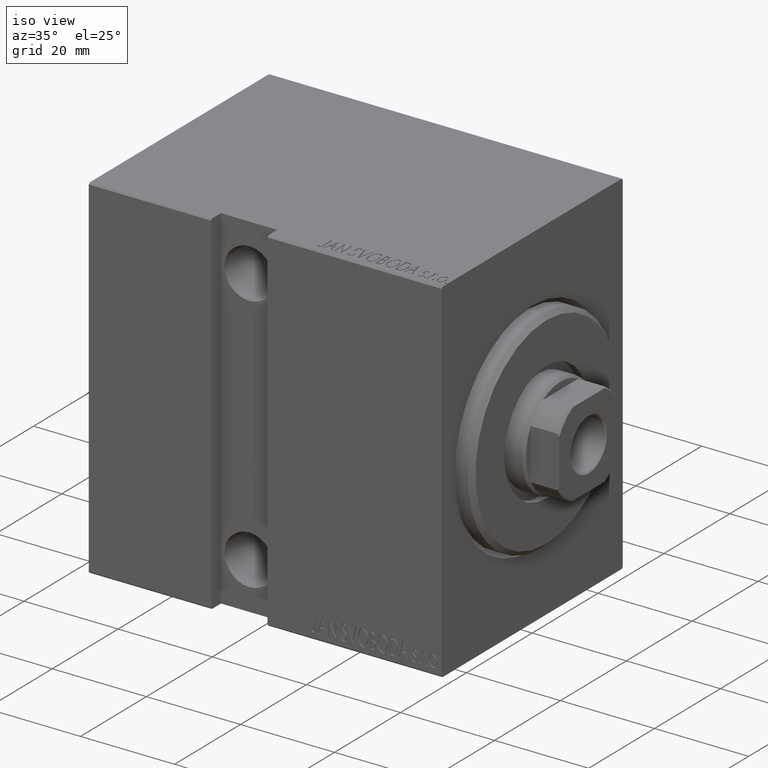
[diagram: clean part render]
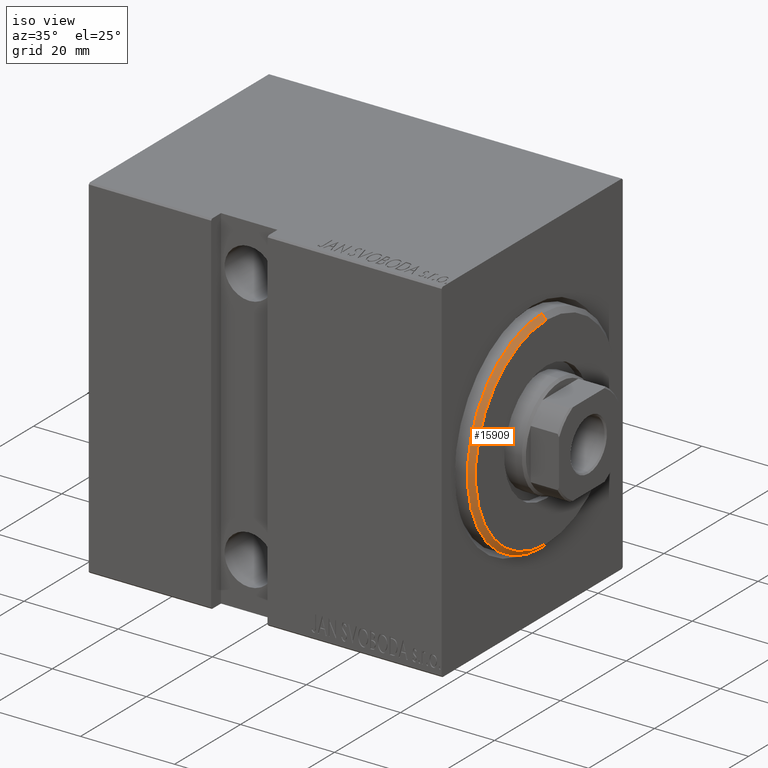
[diagram: same view with one face highlighted and labeled with its STEP entity id]
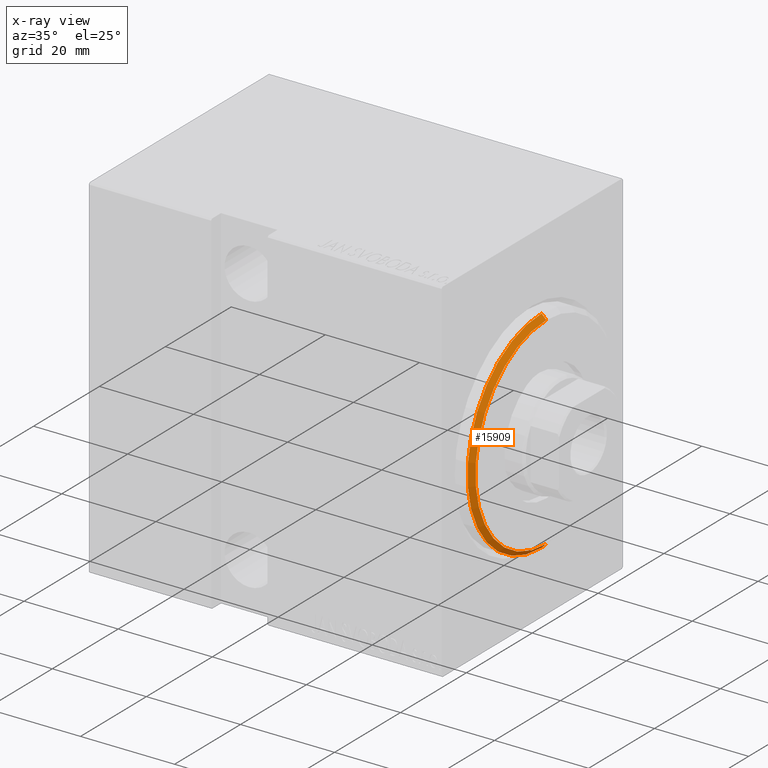
[diagram: x-ray of the same camera — body ghosted, the highlighted face saturated]
A machine part, iso view. The second image highlights one B-rep face of the part: STEP entity #15909.
The next image is the same camera in x-ray: the body ghosted, the highlighted face saturated — about 0% of this face is hidden behind the body in this view.
In plain terms, the highlighted conical surface has half-angle 45 deg.
Its self-contained STEP definition (entity closure, byte-faithful):
#2591 = VECTOR ( 'NONE', #42768, 1000.000000000000000 ) ;
#3724 = AXIS2_PLACEMENT_3D ( 'NONE', #13530, #13318, #13102 ) ;
#8560 = CIRCLE ( 'NONE', #34776, 22.50000000000000355 ) ;
#12087 = EDGE_CURVE ( 'NONE', #32230, #36011, #13322, .T. ) ;
#13001 = CONICAL_SURFACE ( 'NONE', #34394, 21.49999999999998579, 0.7853981633974466137 ) ;
#13102 = DIRECTION ( 'NONE',  ( 0.000000000000000000, 0.000000000000000000, -1.000000000000000000 ) ) ;
#13306 = EDGE_CURVE ( 'NONE', #38772, #14506, #25890, .T. ) ;
#13318 = DIRECTION ( 'NONE',  ( 1.000000000000000000, -0.000000000000000000, 0.000000000000000000 ) ) ;
#13322 = LINE ( 'NONE', #36666, #34334 ) ;
#13530 = CARTESIAN_POINT ( 'NONE',  ( 3.000000000000000000, 0.000000000000000000, 0.000000000000000000 ) ) ;
#14506 = VERTEX_POINT ( 'NONE', #15011 ) ;
#14756 = CIRCLE ( 'NONE', #3724, 21.49999999999998579 ) ;
#15011 = CARTESIAN_POINT ( 'NONE',  ( 1.999999999999978462, 0.000000000000000000, 22.50000000000000355 ) ) ;
#15909 = ADVANCED_FACE ( 'NONE', ( #23834 ), #13001, .T. ) ;
#16778 = CARTESIAN_POINT ( 'NONE',  ( 3.000000000000000000, 0.000000000000000000, 21.49999999999998579 ) ) ;
#20361 = ORIENTED_EDGE ( 'NONE', *, *, #12087, .F. ) ;
#23834 = FACE_OUTER_BOUND ( 'NONE', #36142, .T. ) ;
#23928 = ORIENTED_EDGE ( 'NONE', *, *, #37332, .F. ) ;
#25324 = CARTESIAN_POINT ( 'NONE',  ( 1.999999999999978462, 2.755455298081545172E-15, -22.50000000000000355 ) ) ;
#25890 = LINE ( 'NONE', #29145, #2591 ) ;
#26143 = CARTESIAN_POINT ( 'NONE',  ( 1.999999999999978462, 0.000000000000000000, 0.000000000000000000 ) ) ;
#29145 = CARTESIAN_POINT ( 'NONE',  ( 3.000000000000000000, 0.000000000000000000, 21.49999999999998579 ) ) ;
#29533 = DIRECTION ( 'NONE',  ( -0.7071067811865487940, 8.659560562354918067E-17, -0.7071067811865463515 ) ) ;
#29549 = ORIENTED_EDGE ( 'NONE', *, *, #35632, .F. ) ;
#29682 = CARTESIAN_POINT ( 'NONE',  ( 3.000000000000000000, 2.694222958124176415E-15, -21.49999999999998579 ) ) ;
#30538 = DIRECTION ( 'NONE',  ( -1.000000000000000000, 0.000000000000000000, 0.000000000000000000 ) ) ;
#32230 = VERTEX_POINT ( 'NONE', #29682 ) ;
#33068 = DIRECTION ( 'NONE',  ( -1.000000000000000000, 0.000000000000000000, 0.000000000000000000 ) ) ;
#33719 = DIRECTION ( 'NONE',  ( 0.000000000000000000, 0.000000000000000000, -1.000000000000000000 ) ) ;
#33785 = DIRECTION ( 'NONE',  ( 0.000000000000000000, 0.000000000000000000, 1.000000000000000000 ) ) ;
#34334 = VECTOR ( 'NONE', #29533, 1000.000000000000000 ) ;
#34394 = AXIS2_PLACEMENT_3D ( 'NONE', #36819, #30538, #33785 ) ;
#34776 = AXIS2_PLACEMENT_3D ( 'NONE', #26143, #33068, #33719 ) ;
#35632 = EDGE_CURVE ( 'NONE', #38772, #32230, #14756, .T. ) ;
#36011 = VERTEX_POINT ( 'NONE', #25324 ) ;
#36142 = EDGE_LOOP ( 'NONE', ( #20361, #29549, #41718, #23928 ) ) ;
#36666 = CARTESIAN_POINT ( 'NONE',  ( 3.000000000000000000, 2.632990618166807263E-15, -21.49999999999998579 ) ) ;
#36819 = CARTESIAN_POINT ( 'NONE',  ( 3.000000000000000000, 0.000000000000000000, 0.000000000000000000 ) ) ;
#37332 = EDGE_CURVE ( 'NONE', #36011, #14506, #8560, .T. ) ;
#38772 = VERTEX_POINT ( 'NONE', #16778 ) ;
#41718 = ORIENTED_EDGE ( 'NONE', *, *, #13306, .T. ) ;
#42768 = DIRECTION ( 'NONE',  ( -0.7071067811865487940, 0.000000000000000000, 0.7071067811865463515 ) ) ;